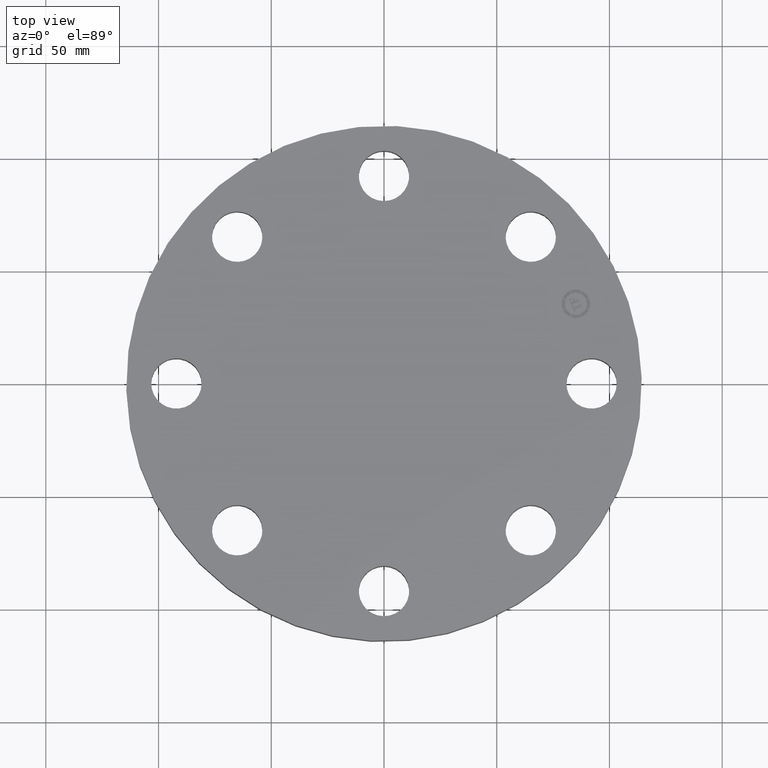
[diagram: clean part render]
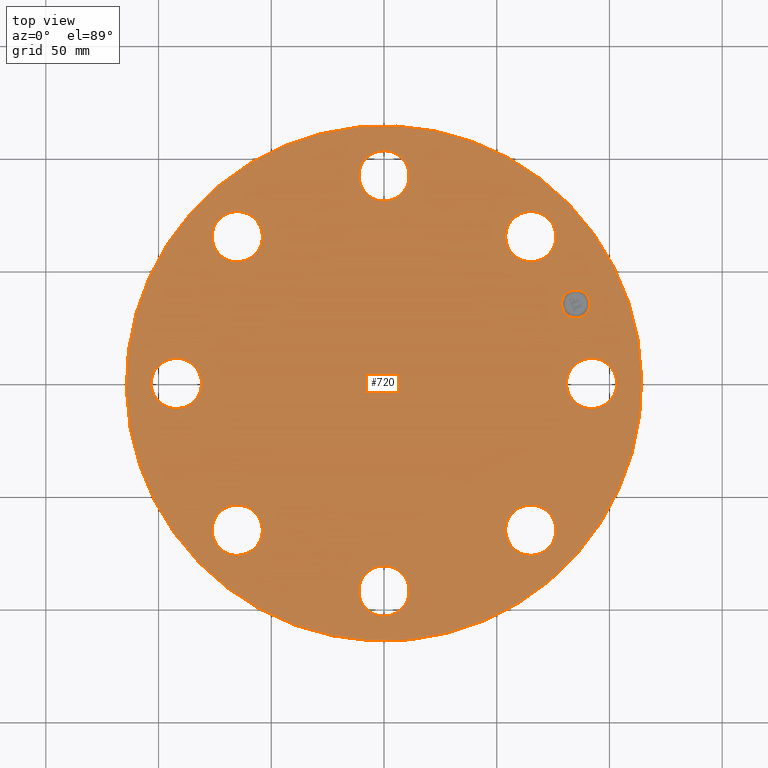
[diagram: same view with one face highlighted and labeled with its STEP entity id]
A machine part, top view. The second image highlights one B-rep face of the part: STEP entity #720.
In plain terms, the highlighted planar face has unit normal (0, 0, -1).
Its self-contained STEP definition (entity closure, byte-faithful):
#65=AXIS2_PLACEMENT_3D('Circle Axis2P3D',#63,#64,$) ;
#82=AXIS2_PLACEMENT_3D('Circle Axis2P3D',#80,#81,$) ;
#115=AXIS2_PLACEMENT_3D('Circle Axis2P3D',#113,#114,$) ;
#139=AXIS2_PLACEMENT_3D('Circle Axis2P3D',#137,#138,$) ;
#381=AXIS2_PLACEMENT_3D('Circle Axis2P3D',#379,#380,$) ;
#393=AXIS2_PLACEMENT_3D('Circle Axis2P3D',#391,#392,$) ;
#424=AXIS2_PLACEMENT_3D('Circle Axis2P3D',#422,#423,$) ;
#436=AXIS2_PLACEMENT_3D('Circle Axis2P3D',#434,#435,$) ;
#467=AXIS2_PLACEMENT_3D('Circle Axis2P3D',#465,#466,$) ;
#479=AXIS2_PLACEMENT_3D('Circle Axis2P3D',#477,#478,$) ;
#510=AXIS2_PLACEMENT_3D('Circle Axis2P3D',#508,#509,$) ;
#522=AXIS2_PLACEMENT_3D('Circle Axis2P3D',#520,#521,$) ;
#553=AXIS2_PLACEMENT_3D('Circle Axis2P3D',#551,#552,$) ;
#565=AXIS2_PLACEMENT_3D('Circle Axis2P3D',#563,#564,$) ;
#596=AXIS2_PLACEMENT_3D('Circle Axis2P3D',#594,#595,$) ;
#608=AXIS2_PLACEMENT_3D('Circle Axis2P3D',#606,#607,$) ;
#639=AXIS2_PLACEMENT_3D('Circle Axis2P3D',#637,#638,$) ;
#651=AXIS2_PLACEMENT_3D('Circle Axis2P3D',#649,#650,$) ;
#664=AXIS2_PLACEMENT_3D('Plane Axis2P3D',#661,#662,#663) ;
#704=AXIS2_PLACEMENT_3D('Circle Axis2P3D',#702,#703,$) ;
#713=AXIS2_PLACEMENT_3D('Circle Axis2P3D',#711,#712,$) ;
#46=CARTESIAN_POINT('Vertex',(3.23886367278,0.210947236987,1.12)) ;
#60=CARTESIAN_POINT('Vertex',(4.01113632725,-0.210947236987,1.12)) ;
#63=CARTESIAN_POINT('Axis2P3D Location',(3.62500000001,0.,1.12)) ;
#80=CARTESIAN_POINT('Axis2P3D Location',(3.62500000001,0.,1.12)) ;
#110=CARTESIAN_POINT('Vertex',(-2.15741492373,-3.94912152852,1.12)) ;
#113=CARTESIAN_POINT('Axis2P3D Location',(0.,0.,1.12)) ;
#117=CARTESIAN_POINT('Vertex',(2.15741492373,3.94912152852,1.12)) ;
#137=CARTESIAN_POINT('Axis2P3D Location',(0.,0.,1.12)) ;
#369=CARTESIAN_POINT('Vertex',(-2.43938468811,2.14106024462,1.12)) ;
#376=CARTESIAN_POINT('Vertex',(-2.68713947551,2.98546391901,1.12)) ;
#379=CARTESIAN_POINT('Axis2P3D Location',(-2.56326208181,2.56326208181,1.12)) ;
#391=CARTESIAN_POINT('Axis2P3D Location',(-2.56326208181,2.56326208181,1.12)) ;
#412=CARTESIAN_POINT('Vertex',(0.210947236987,-3.23886367278,1.12)) ;
#419=CARTESIAN_POINT('Vertex',(-0.210947236987,-4.01113632725,1.12)) ;
#422=CARTESIAN_POINT('Axis2P3D Location',(2.21967232346E-016,-3.62500000001,1.12)) ;
#434=CARTESIAN_POINT('Axis2P3D Location',(2.21967232346E-016,-3.62500000001,1.12)) ;
#455=CARTESIAN_POINT('Vertex',(-0.210947236987,3.23886367278,1.12)) ;
#462=CARTESIAN_POINT('Vertex',(0.210947236987,4.01113632725,1.12)) ;
#465=CARTESIAN_POINT('Axis2P3D Location',(-6.65901697039E-016,3.62500000001,1.12)) ;
#477=CARTESIAN_POINT('Axis2P3D Location',(-6.65901697039E-016,3.62500000001,1.12)) ;
#498=CARTESIAN_POINT('Vertex',(-2.14106024462,-2.43938468811,1.12)) ;
#505=CARTESIAN_POINT('Vertex',(-2.98546391901,-2.68713947551,1.12)) ;
#508=CARTESIAN_POINT('Axis2P3D Location',(-2.56326208181,-2.56326208181,1.12)) ;
#520=CARTESIAN_POINT('Axis2P3D Location',(-2.56326208181,-2.56326208181,1.12)) ;
#541=CARTESIAN_POINT('Vertex',(2.14106024462,2.43938468811,1.12)) ;
#548=CARTESIAN_POINT('Vertex',(2.98546391901,2.68713947551,1.12)) ;
#551=CARTESIAN_POINT('Axis2P3D Location',(2.56326208181,2.56326208181,1.12)) ;
#563=CARTESIAN_POINT('Axis2P3D Location',(2.56326208181,2.56326208181,1.12)) ;
#584=CARTESIAN_POINT('Vertex',(-3.23886367278,-0.210947236987,1.12)) ;
#591=CARTESIAN_POINT('Vertex',(-4.01113632725,0.210947236987,1.12)) ;
#594=CARTESIAN_POINT('Axis2P3D Location',(-3.62500000001,-4.43934464693E-016,1.12)) ;
#606=CARTESIAN_POINT('Axis2P3D Location',(-3.62500000001,-4.43934464693E-016,1.12)) ;
#627=CARTESIAN_POINT('Vertex',(2.43938468811,-2.14106024462,1.12)) ;
#634=CARTESIAN_POINT('Vertex',(2.68713947551,-2.98546391901,1.12)) ;
#637=CARTESIAN_POINT('Axis2P3D Location',(2.56326208181,-2.56326208181,1.12)) ;
#649=CARTESIAN_POINT('Axis2P3D Location',(2.56326208181,-2.56326208181,1.12)) ;
#661=CARTESIAN_POINT('Axis2P3D Location',(0.,4.50000000002,1.12)) ;
#702=CARTESIAN_POINT('Axis2P3D Location',(3.34906330537,1.38722744233,1.12)) ;
#706=CARTESIAN_POINT('Vertex',(3.25434915586,1.61588762663,1.12)) ;
#708=CARTESIAN_POINT('Vertex',(3.44377745488,1.15856725803,1.12)) ;
#711=CARTESIAN_POINT('Axis2P3D Location',(3.34906330537,1.38722744233,1.12)) ;
#64=DIRECTION('Axis2P3D Direction',(0.,-0.,-0.0393700787402)) ;
#81=DIRECTION('Axis2P3D Direction',(0.,-0.,-0.0393700787402)) ;
#114=DIRECTION('Axis2P3D Direction',(0.,0.,-0.0393700787402)) ;
#138=DIRECTION('Axis2P3D Direction',(0.,0.,-0.0393700787402)) ;
#380=DIRECTION('Axis2P3D Direction',(0.,0.,-0.0393700787402)) ;
#392=DIRECTION('Axis2P3D Direction',(0.,0.,-0.0393700787402)) ;
#423=DIRECTION('Axis2P3D Direction',(0.,-0.,-0.0393700787402)) ;
#435=DIRECTION('Axis2P3D Direction',(0.,-0.,-0.0393700787402)) ;
#466=DIRECTION('Axis2P3D Direction',(0.,0.,-0.0393700787402)) ;
#478=DIRECTION('Axis2P3D Direction',(0.,0.,-0.0393700787402)) ;
#509=DIRECTION('Axis2P3D Direction',(-0.,0.,-0.0393700787402)) ;
#521=DIRECTION('Axis2P3D Direction',(-0.,0.,-0.0393700787402)) ;
#552=DIRECTION('Axis2P3D Direction',(0.,0.,-0.0393700787402)) ;
#564=DIRECTION('Axis2P3D Direction',(0.,0.,-0.0393700787402)) ;
#595=DIRECTION('Axis2P3D Direction',(-0.,0.,-0.0393700787402)) ;
#607=DIRECTION('Axis2P3D Direction',(-0.,0.,-0.0393700787402)) ;
#638=DIRECTION('Axis2P3D Direction',(0.,-0.,-0.0393700787402)) ;
#650=DIRECTION('Axis2P3D Direction',(0.,-0.,-0.0393700787402)) ;
#662=DIRECTION('Axis2P3D Direction',(0.,0.,-0.0393700787402)) ;
#663=DIRECTION('Axis2P3D XDirection',(0.0393700787402,0.,0.)) ;
#703=DIRECTION('Axis2P3D Direction',(0.,0.,-0.0393700787402)) ;
#712=DIRECTION('Axis2P3D Direction',(0.,0.,-0.0393700787402)) ;
#667=ORIENTED_EDGE('',*,*,#141,.F.) ;
#668=ORIENTED_EDGE('',*,*,#119,.F.) ;
#671=ORIENTED_EDGE('',*,*,#67,.T.) ;
#672=ORIENTED_EDGE('',*,*,#84,.T.) ;
#675=ORIENTED_EDGE('',*,*,#653,.T.) ;
#676=ORIENTED_EDGE('',*,*,#641,.T.) ;
#679=ORIENTED_EDGE('',*,*,#438,.T.) ;
#680=ORIENTED_EDGE('',*,*,#426,.T.) ;
#683=ORIENTED_EDGE('',*,*,#524,.T.) ;
#684=ORIENTED_EDGE('',*,*,#512,.T.) ;
#687=ORIENTED_EDGE('',*,*,#610,.T.) ;
#688=ORIENTED_EDGE('',*,*,#598,.T.) ;
#691=ORIENTED_EDGE('',*,*,#395,.T.) ;
#692=ORIENTED_EDGE('',*,*,#383,.T.) ;
#695=ORIENTED_EDGE('',*,*,#481,.T.) ;
#696=ORIENTED_EDGE('',*,*,#469,.T.) ;
#699=ORIENTED_EDGE('',*,*,#567,.T.) ;
#700=ORIENTED_EDGE('',*,*,#555,.T.) ;
#717=ORIENTED_EDGE('',*,*,#710,.T.) ;
#718=ORIENTED_EDGE('',*,*,#715,.T.) ;
#673=FACE_BOUND('',#670,.T.) ;
#677=FACE_BOUND('',#674,.T.) ;
#681=FACE_BOUND('',#678,.T.) ;
#685=FACE_BOUND('',#682,.T.) ;
#689=FACE_BOUND('',#686,.T.) ;
#693=FACE_BOUND('',#690,.T.) ;
#697=FACE_BOUND('',#694,.T.) ;
#701=FACE_BOUND('',#698,.T.) ;
#719=FACE_BOUND('',#716,.T.) ;
#720=ADVANCED_FACE('PartBody',(#669,#673,#677,#681,#685,#689,#693,#697,#701,#719),#665,.F.) ;
#66=CIRCLE('generated circle',#65,0.440000000002) ;
#83=CIRCLE('generated circle',#82,0.440000000002) ;
#116=CIRCLE('generated circle',#115,4.50000000002) ;
#140=CIRCLE('generated circle',#139,4.50000000002) ;
#382=CIRCLE('generated circle',#381,0.440000000002) ;
#394=CIRCLE('generated circle',#393,0.440000000002) ;
#425=CIRCLE('generated circle',#424,0.440000000002) ;
#437=CIRCLE('generated circle',#436,0.440000000002) ;
#468=CIRCLE('generated circle',#467,0.440000000002) ;
#480=CIRCLE('generated circle',#479,0.440000000002) ;
#511=CIRCLE('generated circle',#510,0.440000000002) ;
#523=CIRCLE('generated circle',#522,0.440000000002) ;
#554=CIRCLE('generated circle',#553,0.440000000002) ;
#566=CIRCLE('generated circle',#565,0.440000000002) ;
#597=CIRCLE('generated circle',#596,0.440000000002) ;
#609=CIRCLE('generated circle',#608,0.440000000002) ;
#640=CIRCLE('generated circle',#639,0.440000000002) ;
#652=CIRCLE('generated circle',#651,0.440000000002) ;
#705=CIRCLE('generated circle',#704,0.247500000001) ;
#714=CIRCLE('generated circle',#713,0.247500000001) ;
#67=EDGE_CURVE('',#47,#61,#66,.T.) ;
#84=EDGE_CURVE('',#61,#47,#83,.T.) ;
#119=EDGE_CURVE('',#111,#118,#116,.T.) ;
#141=EDGE_CURVE('',#118,#111,#140,.T.) ;
#383=EDGE_CURVE('',#370,#377,#382,.T.) ;
#395=EDGE_CURVE('',#377,#370,#394,.T.) ;
#426=EDGE_CURVE('',#413,#420,#425,.T.) ;
#438=EDGE_CURVE('',#420,#413,#437,.T.) ;
#469=EDGE_CURVE('',#456,#463,#468,.T.) ;
#481=EDGE_CURVE('',#463,#456,#480,.T.) ;
#512=EDGE_CURVE('',#499,#506,#511,.T.) ;
#524=EDGE_CURVE('',#506,#499,#523,.T.) ;
#555=EDGE_CURVE('',#542,#549,#554,.T.) ;
#567=EDGE_CURVE('',#549,#542,#566,.T.) ;
#598=EDGE_CURVE('',#585,#592,#597,.T.) ;
#610=EDGE_CURVE('',#592,#585,#609,.T.) ;
#641=EDGE_CURVE('',#628,#635,#640,.T.) ;
#653=EDGE_CURVE('',#635,#628,#652,.T.) ;
#710=EDGE_CURVE('',#707,#709,#705,.T.) ;
#715=EDGE_CURVE('',#709,#707,#714,.T.) ;
#666=EDGE_LOOP('',(#667,#668)) ;
#670=EDGE_LOOP('',(#671,#672)) ;
#674=EDGE_LOOP('',(#675,#676)) ;
#678=EDGE_LOOP('',(#679,#680)) ;
#682=EDGE_LOOP('',(#683,#684)) ;
#686=EDGE_LOOP('',(#687,#688)) ;
#690=EDGE_LOOP('',(#691,#692)) ;
#694=EDGE_LOOP('',(#695,#696)) ;
#698=EDGE_LOOP('',(#699,#700)) ;
#716=EDGE_LOOP('',(#717,#718)) ;
#669=FACE_OUTER_BOUND('',#666,.T.) ;
#665=PLANE('',#664) ;
#47=VERTEX_POINT('',#46) ;
#61=VERTEX_POINT('',#60) ;
#111=VERTEX_POINT('',#110) ;
#118=VERTEX_POINT('',#117) ;
#370=VERTEX_POINT('',#369) ;
#377=VERTEX_POINT('',#376) ;
#413=VERTEX_POINT('',#412) ;
#420=VERTEX_POINT('',#419) ;
#456=VERTEX_POINT('',#455) ;
#463=VERTEX_POINT('',#462) ;
#499=VERTEX_POINT('',#498) ;
#506=VERTEX_POINT('',#505) ;
#542=VERTEX_POINT('',#541) ;
#549=VERTEX_POINT('',#548) ;
#585=VERTEX_POINT('',#584) ;
#592=VERTEX_POINT('',#591) ;
#628=VERTEX_POINT('',#627) ;
#635=VERTEX_POINT('',#634) ;
#707=VERTEX_POINT('',#706) ;
#709=VERTEX_POINT('',#708) ;